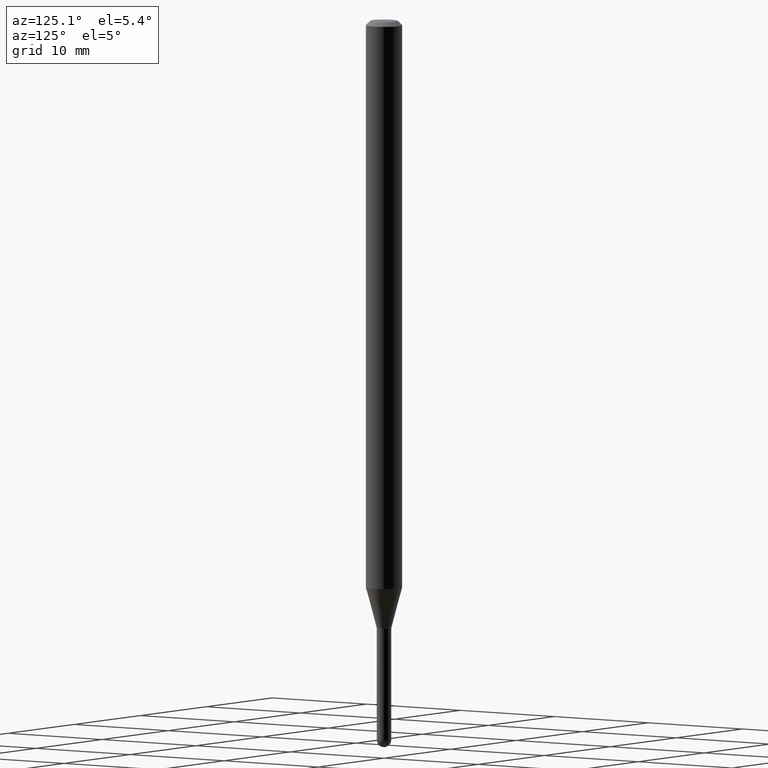
[diagram: clean part render]
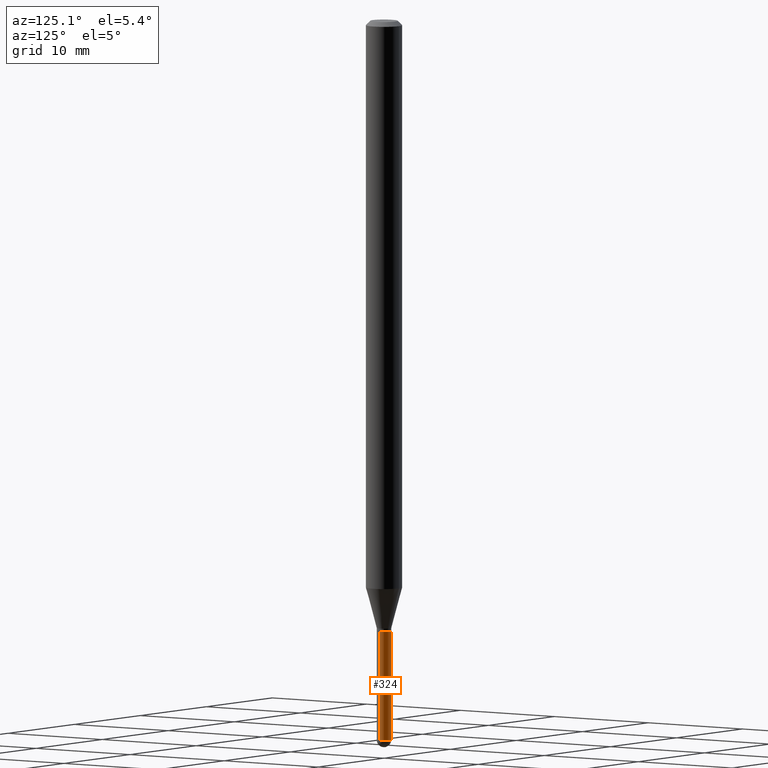
[diagram: same view with one face highlighted and labeled with its STEP entity id]
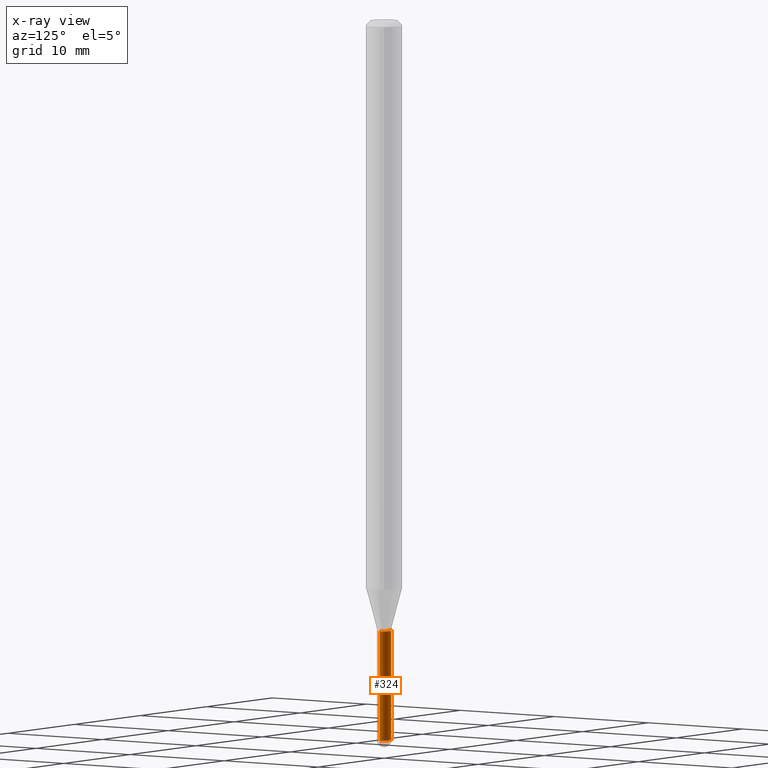
[diagram: x-ray of the same camera — body ghosted, the highlighted face saturated]
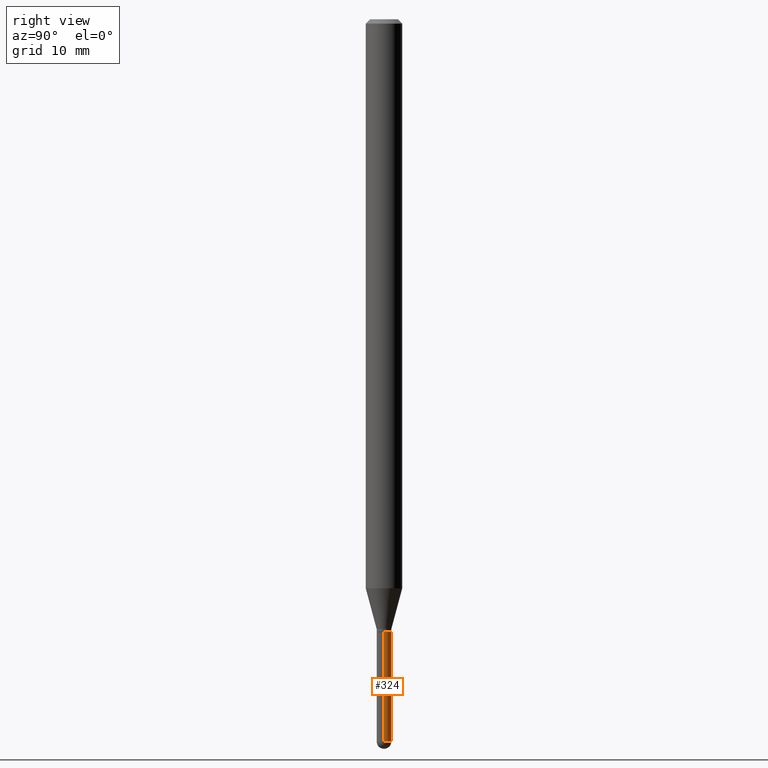
[diagram: same view with one face highlighted and labeled with its STEP entity id]
A machine part, auxiliary view. The second image highlights one B-rep face of the part: STEP entity #324.
The next image is the same camera in x-ray: the body ghosted, the highlighted face saturated — about 0% of this face is hidden behind the body in this view.
A second angle (right view) of the same face is appended — the face is thin or edge-on in the first view.
In plain terms, the highlighted cylindrical surface (edge-blend (fillet) strip) has radius 0.635 mm, axis along (-0, 0, 1).
Its self-contained STEP definition (entity closure, byte-faithful):
#7 = ORIENTED_EDGE ( 'NONE', *, *, #337, .F. ) ;
#9 = CIRCLE ( 'NONE', #462, 0.02500000000000000139 ) ;
#16 = DIRECTION ( 'NONE',  ( 1.000000000000000000, -6.982962677686254878E-15, 0.000000000000000000 ) ) ;
#24 = DIRECTION ( 'NONE',  ( 1.000000000000000000, -6.982962677686267499E-15, 4.876176775795936353E-29 ) ) ;
#26 = DIRECTION ( 'NONE',  ( 1.000000000000000000, -6.982962677686253300E-15, 0.000000000000000000 ) ) ;
#52 = CARTESIAN_POINT ( 'NONE',  ( 5.135484492988787526E-29, -7.332110811570605290E-15, -2.100000000000000089 ) ) ;
#67 = CARTESIAN_POINT ( 'NONE',  ( -0.02500000000000000486, 1.776356839400250810E-16, -1.229733772563726656E-30 ) ) ;
#80 = EDGE_CURVE ( 'NONE', #279, #122, #9, .T. ) ;
#90 = CIRCLE ( 'NONE', #135, 0.02500000000000000486 ) ;
#97 = ORIENTED_EDGE ( 'NONE', *, *, #80, .F. ) ;
#107 = DIRECTION ( 'NONE',  ( -2.445468806185136597E-29, 3.491481338843145583E-15, 1.000000000000000000 ) ) ;
#122 = VERTEX_POINT ( 'NONE', #223 ) ;
#132 = ORIENTED_EDGE ( 'NONE', *, *, #315, .T. ) ;
#135 = AXIS2_PLACEMENT_3D ( 'NONE', #326, #444, #251 ) ;
#144 = VERTEX_POINT ( 'NONE', #343 ) ;
#181 = LINE ( 'NONE', #67, #217 ) ;
#183 = EDGE_CURVE ( 'NONE', #248, #425, #90, .T. ) ;
#210 = DIRECTION ( 'NONE',  ( -2.445468806185136597E-29, 3.491481338843145583E-15, 1.000000000000000000 ) ) ;
#217 = VECTOR ( 'NONE', #380, 39.37007874015748143 ) ;
#223 = CARTESIAN_POINT ( 'NONE',  ( -0.02500000000000000139, -7.809127878663670745E-15, -2.100000000000000089 ) ) ;
#224 = CARTESIAN_POINT ( 'NONE',  ( -0.02500000000000000486, -7.809127878663670745E-15, -2.475000000000000089 ) ) ;
#225 = CARTESIAN_POINT ( 'NONE',  ( 0.02500000000000000486, -1.745740669421567171E-16, 1.219044193948984299E-30 ) ) ;
#248 = VERTEX_POINT ( 'NONE', #254 ) ;
#251 = DIRECTION ( 'NONE',  ( 1.000000000000000000, -6.982962677686253300E-15, 0.000000000000000000 ) ) ;
#254 = CARTESIAN_POINT ( 'NONE',  ( 1.745740669422160049E-16, 0.02499999999999119593, -2.475000000000000089 ) ) ;
#256 = CYLINDRICAL_SURFACE ( 'NONE', #272, 0.02500000000000000486 ) ;
#263 = CARTESIAN_POINT ( 'NONE',  ( 6.052535295308213750E-29, -8.641416313636786609E-15, -2.475000000000000089 ) ) ;
#272 = AXIS2_PLACEMENT_3D ( 'NONE', #416, #107, #24 ) ;
#279 = VERTEX_POINT ( 'NONE', #369 ) ;
#289 = VECTOR ( 'NONE', #376, 39.37007874015748143 ) ;
#315 = EDGE_CURVE ( 'NONE', #425, #122, #181, .T. ) ;
#324 = ADVANCED_FACE ( 'NONE', ( #457 ), #256, .T. ) ;
#326 = CARTESIAN_POINT ( 'NONE',  ( 6.052535295308213750E-29, -8.641416313636786609E-15, -2.475000000000000089 ) ) ;
#337 = EDGE_CURVE ( 'NONE', #144, #279, #418, .T. ) ;
#343 = CARTESIAN_POINT ( 'NONE',  ( 0.02500000000000000486, -8.161337629545851828E-15, -2.475000000000000089 ) ) ;
#358 = EDGE_CURVE ( 'NONE', #144, #248, #367, .T. ) ;
#367 = CIRCLE ( 'NONE', #449, 0.02500000000000000486 ) ;
#369 = CARTESIAN_POINT ( 'NONE',  ( 0.02500000000000000139, -7.506684878512761957E-15, -2.100000000000000089 ) ) ;
#376 = DIRECTION ( 'NONE',  ( -2.445468806185136877E-29, 3.491481338843145188E-15, 1.000000000000000000 ) ) ;
#380 = DIRECTION ( 'NONE',  ( -2.445468806185136877E-29, 3.491481338843145188E-15, 1.000000000000000000 ) ) ;
#401 = ORIENTED_EDGE ( 'NONE', *, *, #358, .T. ) ;
#416 = CARTESIAN_POINT ( 'NONE',  ( 0.000000000000000000, 0.000000000000000000, 0.000000000000000000 ) ) ;
#418 = LINE ( 'NONE', #225, #289 ) ;
#422 = DIRECTION ( 'NONE',  ( -2.445468806185136597E-29, 3.491481338843145583E-15, 1.000000000000000000 ) ) ;
#425 = VERTEX_POINT ( 'NONE', #224 ) ;
#444 = DIRECTION ( 'NONE',  ( -2.445468806185136597E-29, 3.491481338843145583E-15, 1.000000000000000000 ) ) ;
#449 = AXIS2_PLACEMENT_3D ( 'NONE', #263, #422, #26 ) ;
#457 = FACE_OUTER_BOUND ( 'NONE', #486, .T. ) ;
#462 = AXIS2_PLACEMENT_3D ( 'NONE', #52, #210, #16 ) ;
#471 = ORIENTED_EDGE ( 'NONE', *, *, #183, .T. ) ;
#486 = EDGE_LOOP ( 'NONE', ( #471, #132, #97, #7, #401 ) ) ;